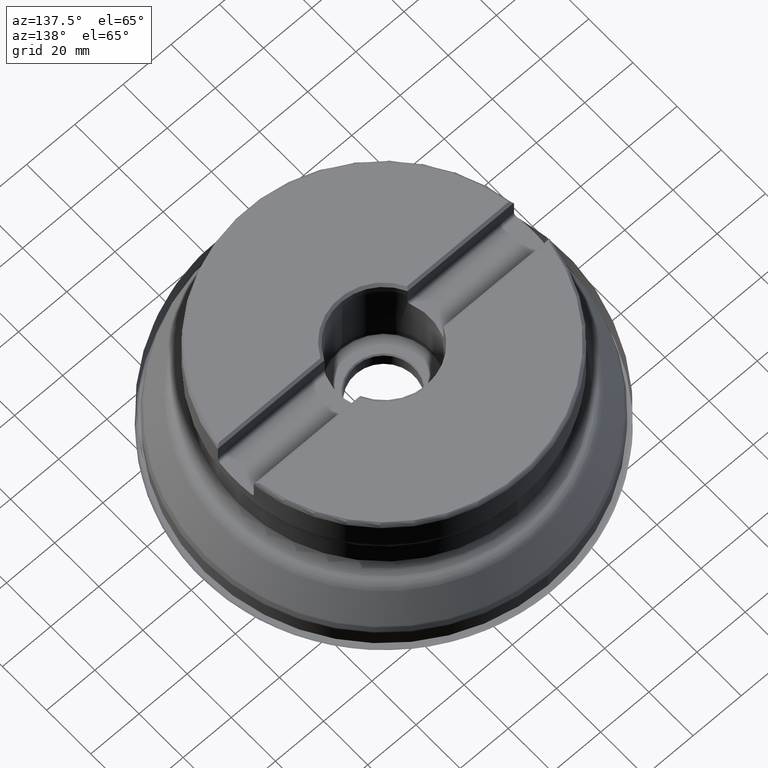
[diagram: clean part render]
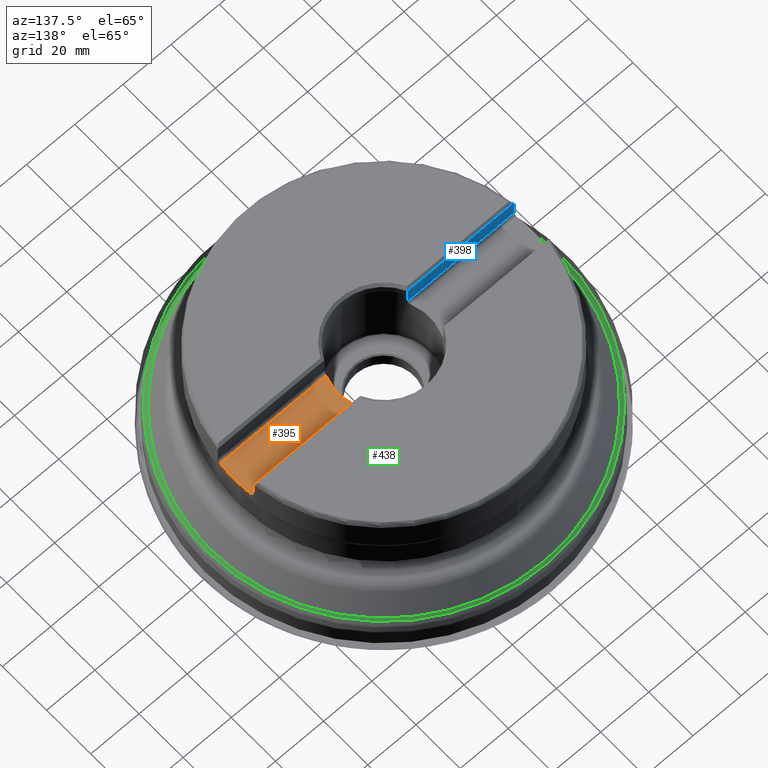
[diagram: same view with three faces highlighted in distinct colors, each labeled with its STEP entity id]
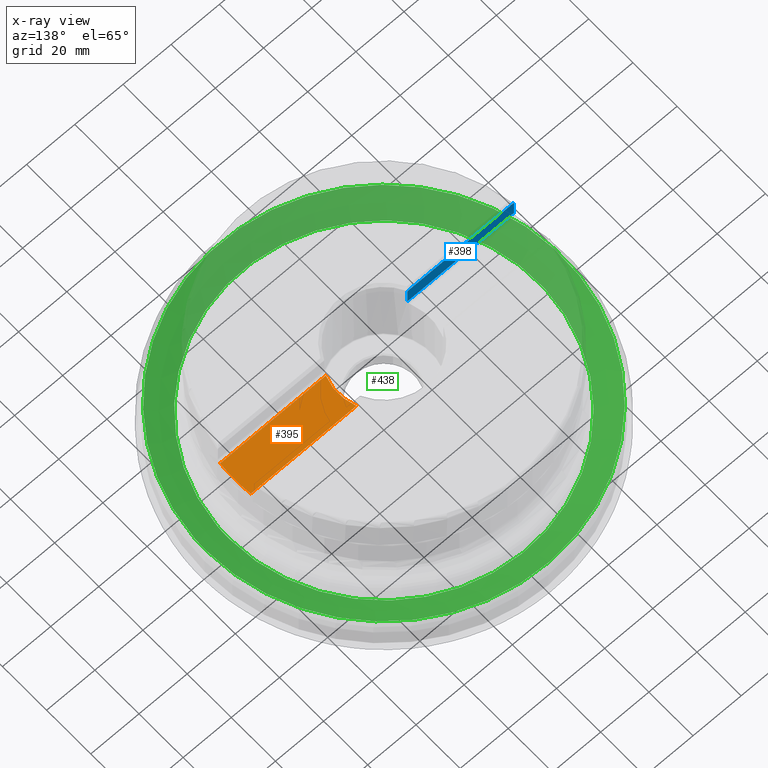
[diagram: x-ray of the same camera — body ghosted, the three highlighted faces saturated]
A machine part, auxiliary view with three faces highlighted in distinct colors.
The next image is the same camera in x-ray (body ghosted, the three faces saturated) — at least one of them is partly hidden behind the body in this view.
Their STEP definitions:

[orange] entity #395 — the highlighted planar face has unit normal (0, 0, 1).
#177=PLANE('',#1275);
#211=LINE('',#2259,#241);
#212=LINE('',#2260,#242);
#241=VECTOR('',#1488,1.);
#242=VECTOR('',#1489,1.);
#395=ADVANCED_FACE('',(#467),#177,.T.);
#467=FACE_OUTER_BOUND('',#533,.T.);
#533=EDGE_LOOP('',(#721,#722,#723,#724));
#721=ORIENTED_EDGE('',*,*,#1034,.T.);
#722=ORIENTED_EDGE('',*,*,#1016,.F.);
#723=ORIENTED_EDGE('',*,*,#1035,.T.);
#724=ORIENTED_EDGE('',*,*,#973,.F.);
#867=VERTEX_POINT('',#1968);
#873=VERTEX_POINT('',#2027);
#910=VERTEX_POINT('',#2184);
#911=VERTEX_POINT('',#2186);
#973=EDGE_CURVE('',#873,#867,#1077,.T.);
#1016=EDGE_CURVE('',#910,#911,#1102,.T.);
#1034=EDGE_CURVE('',#873,#911,#211,.T.);
#1035=EDGE_CURVE('',#910,#867,#212,.T.);
#1077=CIRCLE('',#1208,62.);
#1102=CIRCLE('',#1247,19.05);
#1208=AXIS2_PLACEMENT_3D('',#2028,#1342,#1343);
#1247=AXIS2_PLACEMENT_3D('',#2185,#1431,#1432);
#1275=AXIS2_PLACEMENT_3D('',#2261,#1490,#1491);
#1342=DIRECTION('',(-1.17145536458252E-15,-7.45233380313038E-16,-1.));
#1343=DIRECTION('',(-1.,1.39163970175078E-30,1.11917643611407E-15));
#1431=DIRECTION('',(1.17145536458252E-15,7.45233380313038E-16,1.));
#1432=DIRECTION('',(6.47031582366316E-31,1.,-7.2849279831047E-16));
#1488=DIRECTION('',(-1.,1.37230767120917E-30,1.17145536458252E-15));
#1489=DIRECTION('',(1.,-1.37230767120917E-30,-1.17145536458252E-15));
#1490=DIRECTION('',(1.17145536458252E-15,7.45233380313038E-16,1.));
#1491=DIRECTION('',(0.,1.,-7.42461647718073E-16));
#1968=CARTESIAN_POINT('',(61.6103595185095,-6.93999999999994,50.7949999999999));
#2027=CARTESIAN_POINT('',(61.6103595185095,6.94000000000006,50.7949999999999));
#2028=CARTESIAN_POINT('',(0.,5.95040752439693E-14,50.795));
#2184=CARTESIAN_POINT('',(17.7408821652138,-6.93999999999994,50.795));
#2185=CARTESIAN_POINT('',(5.95040752439693E-14,5.95040752439693E-14,50.795));
#2186=CARTESIAN_POINT('',(17.7408821652138,6.94000000000006,50.795));
#2259=CARTESIAN_POINT('',(67.0000000000001,6.94000000000006,50.7949999999999));
#2260=CARTESIAN_POINT('',(67.0000000000001,-6.93999999999994,50.7949999999999));
#2261=CARTESIAN_POINT('',(67.0000000000001,-8.13999999999994,50.7949999999999));

[blue] entity #398 — the highlighted planar face has unit normal (0, 1, -0).
#178=PLANE('',#1278);
#196=LINE('',#1970,#226);
#209=LINE('',#2165,#239);
#214=LINE('',#2265,#244);
#215=LINE('',#2271,#245);
#226=VECTOR('',#1337,1.);
#239=VECTOR('',#1428,1.);
#244=VECTOR('',#1497,1.);
#245=VECTOR('',#1498,1.);
#398=ADVANCED_FACE('',(#470),#178,.T.);
#470=FACE_OUTER_BOUND('',#536,.T.);
#536=EDGE_LOOP('',(#733,#734,#735,#736,#737,#738,#739));
#733=ORIENTED_EDGE('',*,*,#1037,.T.);
#734=ORIENTED_EDGE('',*,*,#1038,.T.);
#735=ORIENTED_EDGE('',*,*,#1019,.F.);
#736=ORIENTED_EDGE('',*,*,#1013,.F.);
#737=ORIENTED_EDGE('',*,*,#1039,.T.);
#738=ORIENTED_EDGE('',*,*,#966,.F.);
#739=ORIENTED_EDGE('',*,*,#953,.F.);
#855=VERTEX_POINT('',#1882);
#856=VERTEX_POINT('',#1890);
#868=VERTEX_POINT('',#1971);
#908=VERTEX_POINT('',#2164);
#909=VERTEX_POINT('',#2166);
#913=VERTEX_POINT('',#2213);
#926=VERTEX_POINT('',#2266);
#953=EDGE_CURVE('',#855,#856,#1157,.T.);
#966=EDGE_CURVE('',#856,#868,#196,.T.);
#1013=EDGE_CURVE('',#908,#909,#209,.T.);
#1019=EDGE_CURVE('',#909,#913,#1176,.T.);
#1037=EDGE_CURVE('',#855,#926,#214,.T.);
#1038=EDGE_CURVE('',#926,#913,#1178,.T.);
#1039=EDGE_CURVE('',#908,#868,#215,.T.);
#1157=B_SPLINE_CURVE_WITH_KNOTS('',3,(#1883,#1884,#1885,#1886,#1887,#1888,
#1889),.UNSPECIFIED.,.F.,.F.,(4,3,4),(0.,0.548414241292166,1.),
 .UNSPECIFIED.);
#1176=B_SPLINE_CURVE_WITH_KNOTS('',3,(#2206,#2207,#2208,#2209,#2210,#2211,
#2212),.UNSPECIFIED.,.F.,.F.,(4,3,4),(0.,0.643246009663333,1.),
 .UNSPECIFIED.);
#1178=B_SPLINE_CURVE_WITH_KNOTS('',3,(#2267,#2268,#2269,#2270),
 .UNSPECIFIED.,.F.,.F.,(4,4),(0.,1.),.UNSPECIFIED.);
#1278=AXIS2_PLACEMENT_3D('',#2272,#1499,#1500);
#1337=DIRECTION('',(0.,-1.17145536458252E-15,-1.));
#1428=DIRECTION('',(1.17145536458252E-15,1.17145536458252E-15,1.));
#1497=DIRECTION('',(1.,-2.13237263588696E-31,2.49797936359876E-46));
#1498=DIRECTION('',(-1.,1.37230767120917E-30,1.17145536458252E-15));
#1499=DIRECTION('',(2.13237263588696E-31,1.,-9.89427717575514E-16));
#1500=DIRECTION('',(-1.16573417585641E-15,-9.8879238130678E-16,-1.));
#1882=CARTESIAN_POINT('',(-61.2948940235472,-8.13999999999993,59.325));
#1883=CARTESIAN_POINT('',(-61.2948940235472,-8.13999999999993,59.325));
#1884=CARTESIAN_POINT('',(-61.3554017640917,-8.13999999999993,59.1875659465995));
#1885=CARTESIAN_POINT('',(-61.4005424922713,-8.13999999999993,59.0423191600128));
#1886=CARTESIAN_POINT('',(-61.4285412812013,-8.13999999999993,58.8947882360736));
#1887=CARTESIAN_POINT('',(-61.451625619956,-8.13999999999993,58.773152481273));
#1888=CARTESIAN_POINT('',(-61.4633256503421,-8.13999999999993,58.6488068800256));
#1889=CARTESIAN_POINT('',(-61.4633256503421,-8.13999999999993,58.525));
#1890=CARTESIAN_POINT('',(-61.4633256503421,-8.13999999999993,58.525));
#1970=CARTESIAN_POINT('',(-61.4633256503421,-8.13999999999999,8.05394162106467E-15));
#1971=CARTESIAN_POINT('',(-61.4633256503421,-8.13999999999994,51.9950000000001));
#2164=CARTESIAN_POINT('',(-17.2233243016555,-8.13999999999994,51.995));
#2165=CARTESIAN_POINT('',(-17.2233243016556,-8.13999999999999,2.82302972701837E-14));
#2166=CARTESIAN_POINT('',(-17.2233243016555,-8.13999999999993,56.325));
#2206=CARTESIAN_POINT('',(-17.2233243016555,-8.13999999999993,56.325));
#2207=CARTESIAN_POINT('',(-17.241787737125,-8.13999999999993,56.9624801250739));
#2208=CARTESIAN_POINT('',(-17.2602457564619,-8.13999999999993,57.5999604070386));
#2209=CARTESIAN_POINT('',(-17.2786984115604,-8.13999999999993,58.2374408442548));
#2210=CARTESIAN_POINT('',(-17.2889325338785,-8.13999999999993,58.590997160949));
#2211=CARTESIAN_POINT('',(-17.2991650061558,-8.13999999999993,58.9445535254094));
#2212=CARTESIAN_POINT('',(-17.3093958371532,-8.13999999999993,59.2981099373595));
#2213=CARTESIAN_POINT('',(-17.3093958371532,-8.13999999999993,59.2981099373595));
#2265=CARTESIAN_POINT('',(67.0000000000001,-8.13999999999993,59.325));
#2266=CARTESIAN_POINT('',(-17.3391062539844,-8.13999999999993,59.325));
#2267=CARTESIAN_POINT('',(-17.3391062539844,-8.13999999999993,59.325));
#2268=CARTESIAN_POINT('',(-17.3292034727386,-8.13999999999993,59.3160358823358));
#2269=CARTESIAN_POINT('',(-17.3193000014706,-8.13999999999993,59.3070725268889));
#2270=CARTESIAN_POINT('',(-17.3093958371532,-8.13999999999993,59.2981099373595));
#2271=CARTESIAN_POINT('',(67.0000000000001,-8.13999999999994,51.9949999999999));
#2272=CARTESIAN_POINT('',(67.0000000000001,-8.13999999999993,60.3249999999999));

[green] entity #438 — the highlighted face is a SurfaceOfRevolution surface.
#125=SURFACE_OF_REVOLUTION('',#1196,#146);
#146=AXIS1_PLACEMENT('',#2520,#1604);
#357=FACE_BOUND('',#605,.T.);
#358=FACE_BOUND('',#606,.T.);
#438=ADVANCED_FACE('',(#357,#358),#125,.F.);
#605=EDGE_LOOP('',(#845));
#606=EDGE_LOOP('',(#846));
#845=ORIENTED_EDGE('',*,*,#1067,.T.);
#846=ORIENTED_EDGE('',*,*,#1068,.F.);
#947=VERTEX_POINT('',#2495);
#948=VERTEX_POINT('',#2505);
#1067=EDGE_CURVE('',#947,#947,#1131,.T.);
#1068=EDGE_CURVE('',#948,#948,#1132,.T.);
#1131=CIRCLE('',#1316,64.189190858143);
#1132=CIRCLE('',#1317,73.7410895575388);
#1196=B_SPLINE_CURVE_WITH_KNOTS('',3,(#2506,#2507,#2508,#2509,#2510,#2511,
#2512,#2513,#2514,#2515,#2516,#2517,#2518,#2519),.UNSPECIFIED.,.F.,.F.,
(4,1,1,1,1,1,1,1,1,1,1,4),(0.,0.033411319286246,0.068579475049133,0.138915786574907,
0.209252098100681,0.244420253863568,0.279588409626454,0.349924721152228,
0.490597344203776,0.631269967255324,0.771942590306871,1.),.UNSPECIFIED.);
#1316=AXIS2_PLACEMENT_3D('',#2494,#1599,#1600);
#1317=AXIS2_PLACEMENT_3D('',#2504,#1602,#1603);
#1599=DIRECTION('',(0.,0.,1.));
#1600=DIRECTION('',(1.,0.,0.));
#1602=DIRECTION('',(0.,0.,1.));
#1603=DIRECTION('',(1.,0.,0.));
#1604=DIRECTION('',(0.,0.,1.));
#2494=CARTESIAN_POINT('',(0.,0.,10.7766375357149));
#2495=CARTESIAN_POINT('',(64.189190858143,0.,10.7766375357149));
#2504=CARTESIAN_POINT('',(0.,0.,16.085540580062));
#2505=CARTESIAN_POINT('',(73.7410895575388,0.,16.085540580062));
#2506=CARTESIAN_POINT('',(73.5211939145687,-5.69054890600589,16.0855407563418));
#2507=CARTESIAN_POINT('',(73.4128291253058,-5.70456122398546,16.0305981042897));
#2508=CARTESIAN_POINT('',(73.1904639344705,-5.73332804393123,15.9177024858354));
#2509=CARTESIAN_POINT('',(72.7402708571647,-5.79151480095352,15.6884942092356));
#2510=CARTESIAN_POINT('',(72.1700742448389,-5.84556463209464,15.3945463280762));
#2511=CARTESIAN_POINT('',(71.6005267829436,-5.87487594040974,15.0958063035739));
#2512=CARTESIAN_POINT('',(71.1459100963472,-5.88432671021621,14.8541005396687));
#2513=CARTESIAN_POINT('',(70.6923120614179,-5.88229779513219,14.6103397659397));
#2514=CARTESIAN_POINT('',(69.8997914399792,-5.87786356303624,14.1814703548764));
#2515=CARTESIAN_POINT('',(68.7708804008776,-5.87318666533556,13.5627511635747));
#2516=CARTESIAN_POINT('',(67.4219303171855,-5.86922875207353,12.8098881875621));
#2517=CARTESIAN_POINT('',(65.8015676653433,-5.86686344896301,11.8871146605899));
#2518=CARTESIAN_POINT('',(64.6371159189435,-5.86781890914694,11.2044833130455));
#2519=CARTESIAN_POINT('',(63.9202796275027,-5.8694186564741,10.7766375357149));
#2520=CARTESIAN_POINT('',(0.,0.,0.));